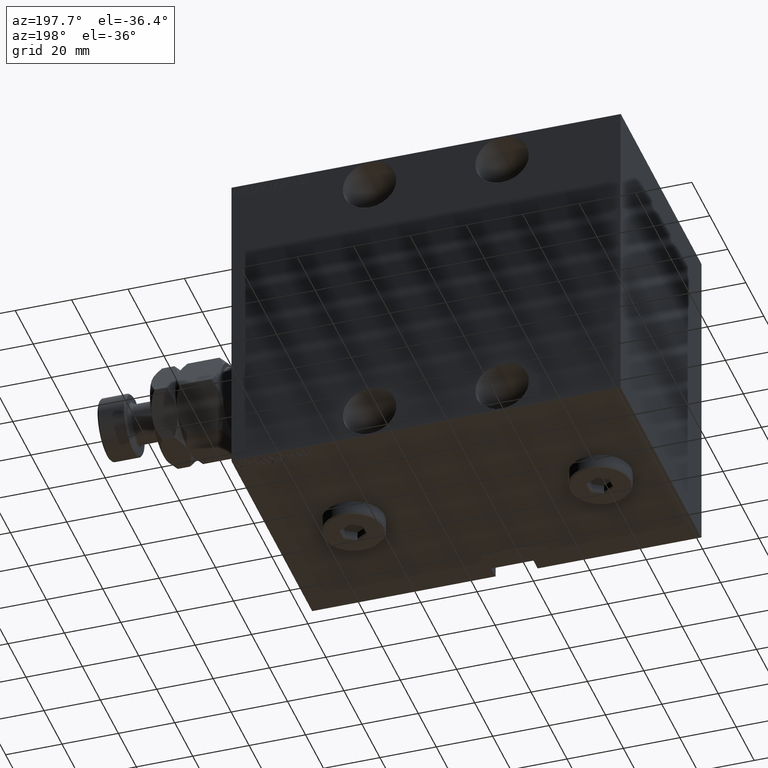
[diagram: clean part render]
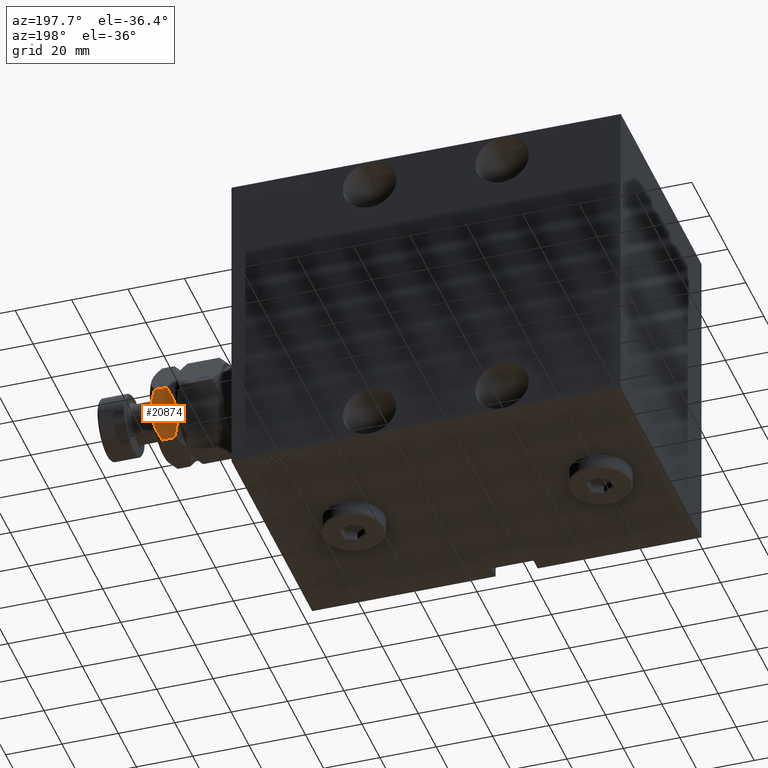
[diagram: same view with one face highlighted and labeled with its STEP entity id]
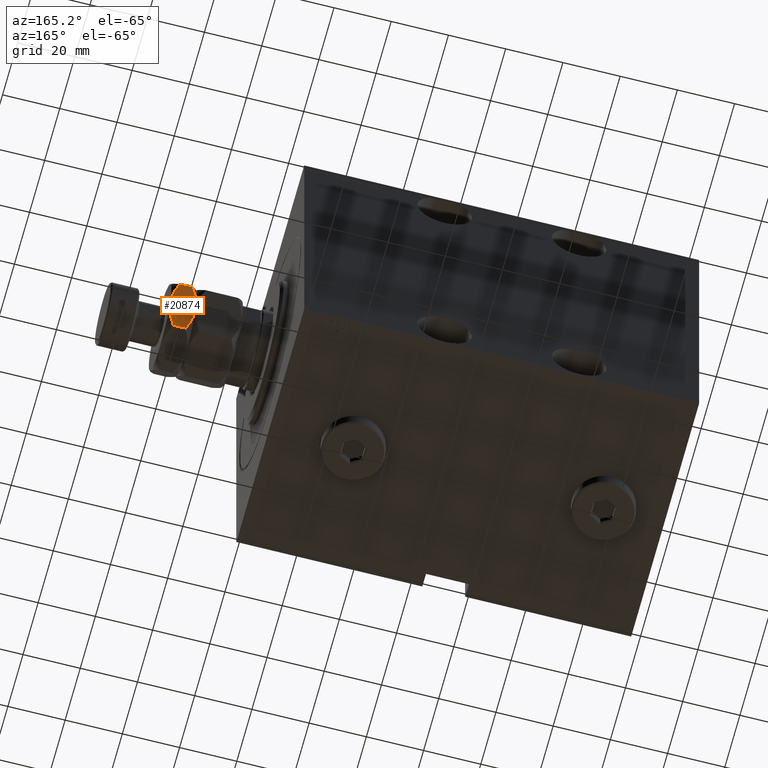
[diagram: same view with one face highlighted and labeled with its STEP entity id]
A machine part, auxiliary view. The second image highlights one B-rep face of the part: STEP entity #20874.
A second angle (auxiliary view) of the same face is appended — the face is thin or edge-on in the first view.
In plain terms, the highlighted planar face has unit normal (0, -0.866, 0.5).
Its self-contained STEP definition (entity closure, byte-faithful):
#244 = VERTEX_POINT ( 'NONE', #17517 ) ;
#792 = DIRECTION ( 'NONE',  ( -0.000000000000000000, -0.000000000000000000, -1.000000000000000000 ) ) ;
#1023 = CARTESIAN_POINT ( 'NONE',  ( 7.606663105073224303E-16, 17.32050807568877104, 22.67949192431123606 ) ) ;
#1620 = VECTOR ( 'NONE', #24114, 1000.000000000000000 ) ;
#3766 = CARTESIAN_POINT ( 'NONE',  ( 10.08691881950258917, 11.49682277995504798, 16.23032992193921586 ) ) ;
#4473 = B_SPLINE_CURVE_WITH_KNOTS ( 'NONE', 3,
 ( #20878, #27824, #14371, #7116, #42031, #24341, #10390, #38549 ),
 .UNSPECIFIED., .F., .F.,
 ( 4, 2, 2, 4 ),
 ( 2.544309033627217716E-07, 0.004488823491893905240, 0.006733108022389176252, 0.008977392552884448998 ),
 .UNSPECIFIED. ) ;
#6565 = AXIS2_PLACEMENT_3D ( 'NONE', #40763, #23073, #37279 ) ;
#6994 = CARTESIAN_POINT ( 'NONE',  ( 7.606663105073224303E-16, 17.32050807568877104, 22.67949192431123606 ) ) ;
#7116 = CARTESIAN_POINT ( 'NONE',  ( 10.75222765045651308, 11.11270654730956409, 24.55242859148698287 ) ) ;
#7188 = CARTESIAN_POINT ( 'NONE',  ( 1.176108425306642946, 16.64148155974180199, 17.64148155974179133 ) ) ;
#7242 = VERTEX_POINT ( 'NONE', #42506 ) ;
#7771 = LINE ( 'NONE', #36181, #45228 ) ;
#8392 = CARTESIAN_POINT ( 'NONE',  ( 7.500000000000000000, 12.99038105676657651, 16.00000000000000000 ) ) ;
#8673 = VERTEX_POINT ( 'NONE', #29340 ) ;
#8929 = EDGE_CURVE ( 'NONE', #7242, #244, #19702, .T. ) ;
#9822 = EDGE_CURVE ( 'NONE', #17726, #7242, #27377, .T. ) ;
#9897 = B_SPLINE_CURVE_WITH_KNOTS ( 'NONE', 3,
 ( #8392, #11437, #3766, #25611, #17992, #36351 ),
 .UNSPECIFIED., .F., .F.,
 ( 4, 2, 4 ),
 ( 0.008977392552884448998, 0.01343452311421656359, 0.01789165367554867991 ),
 .UNSPECIFIED. ) ;
#10216 = CARTESIAN_POINT ( 'NONE',  ( 4.247772349543485149, 14.86805556622358893, 16.44757140851302069 ) ) ;
#10390 = CARTESIAN_POINT ( 'NONE',  ( 8.156876182308248957, 12.61113341608665550, 25.00000000000000355 ) ) ;
#11196 = CARTESIAN_POINT ( 'NONE',  ( 2.383929548160351519, 15.94414570932928576, 23.93952096862912171 ) ) ;
#11437 = CARTESIAN_POINT ( 'NONE',  ( 8.804550678576910983, 12.23719837131868715, 16.00000000000000000 ) ) ;
#12235 = EDGE_CURVE ( 'NONE', #21063, #17726, #14451, .T. ) ;
#12848 = ORIENTED_EDGE ( 'NONE', *, *, #36152, .F. ) ;
#14356 = EDGE_LOOP ( 'NONE', ( #37216, #38800, #37653, #12848, #22078, #44271 ) ) ;
#14371 = CARTESIAN_POINT ( 'NONE',  ( 12.62116548881249223, 10.03367478323605866, 23.93551393225599000 ) ) ;
#14451 = B_SPLINE_CURVE_WITH_KNOTS ( 'NONE', 3,
 ( #35661, #32612, #39588, #11196, #25592, #6994 ),
 .UNSPECIFIED., .F., .F.,
 ( 4, 2, 4 ),
 ( 0.008977392552884448998, 0.01343452311421656532, 0.01789165367554867991 ),
 .UNSPECIFIED. ) ;
#17021 = EDGE_CURVE ( 'NONE', #8673, #44265, #7771, .T. ) ;
#17517 = CARTESIAN_POINT ( 'NONE',  ( 7.500000000000000000, 12.99038105676657651, 16.00000000000000000 ) ) ;
#17693 = CARTESIAN_POINT ( 'NONE',  ( 7.500000000000000000, 12.99038105676657651, 16.00000000000000000 ) ) ;
#17726 = VERTEX_POINT ( 'NONE', #1023 ) ;
#17992 = CARTESIAN_POINT ( 'NONE',  ( 13.82525345580783593, 9.338494271363314780, 17.64226784216978317 ) ) ;
#19702 = B_SPLINE_CURVE_WITH_KNOTS ( 'NONE', 3,
 ( #45839, #7188, #21403, #10216, #35623, #27669, #42584, #17693 ),
 .UNSPECIFIED., .F., .F.,
 ( 4, 2, 2, 4 ),
 ( 2.544309033643862443E-07, 0.004488823491893907842, 0.006733108022389177987, 0.008977392552884448998 ),
 .UNSPECIFIED. ) ;
#20874 = ADVANCED_FACE ( 'NONE', ( #26538 ), #22599, .F. ) ;
#20878 = CARTESIAN_POINT ( 'NONE',  ( 14.99999999999999822, 8.660254037844385522, 22.67949192431123961 ) ) ;
#21063 = VERTEX_POINT ( 'NONE', #31431 ) ;
#21403 = CARTESIAN_POINT ( 'NONE',  ( 2.378834511187505107, 15.94708733029709080, 17.06448606774400290 ) ) ;
#22078 = ORIENTED_EDGE ( 'NONE', *, *, #17021, .T. ) ;
#22599 = PLANE ( 'NONE',  #6565 ) ;
#23073 = DIRECTION ( 'NONE',  ( -0.5000000000000001110, -0.8660254037844387076, 0.000000000000000000 ) ) ;
#24114 = DIRECTION ( 'NONE',  ( -0.000000000000000000, -0.000000000000000000, -1.000000000000000000 ) ) ;
#24341 = CARTESIAN_POINT ( 'NONE',  ( 8.823580389329297446, 12.22621156269319798, 24.94046462602530667 ) ) ;
#25592 = CARTESIAN_POINT ( 'NONE',  ( 1.174746544192161180, 16.64226784216984711, 23.35773215783022039 ) ) ;
#25611 = CARTESIAN_POINT ( 'NONE',  ( 12.61607045183964360, 10.03661640420386369, 17.06047903137087829 ) ) ;
#26538 = FACE_OUTER_BOUND ( 'NONE', #14356, .T. ) ;
#27377 = LINE ( 'NONE', #41584, #1620 ) ;
#27669 = CARTESIAN_POINT ( 'NONE',  ( 6.176419610670696336, 13.75455055083995681, 16.05953537397469333 ) ) ;
#27824 = CARTESIAN_POINT ( 'NONE',  ( 13.82389157469335750, 9.339280553791359907, 23.35851844025819801 ) ) ;
#29340 = CARTESIAN_POINT ( 'NONE',  ( 14.99999999999999822, 8.660254037844385522, 22.67949192431123961 ) ) ;
#31431 = CARTESIAN_POINT ( 'NONE',  ( 7.499999999999998224, 12.99038105676657651, 25.00000000000000000 ) ) ;
#32612 = CARTESIAN_POINT ( 'NONE',  ( 6.195449321423086353, 13.74356374221446764, 25.00000000000000000 ) ) ;
#35623 = CARTESIAN_POINT ( 'NONE',  ( 4.881674457977375425, 14.50207201327940787, 16.28380266194628945 ) ) ;
#35661 = CARTESIAN_POINT ( 'NONE',  ( 7.499999999999998224, 12.99038105676657651, 25.00000000000000000 ) ) ;
#36028 = CARTESIAN_POINT ( 'NONE',  ( 14.99999999999999645, 8.660254037844387298, 18.32050807568876394 ) ) ;
#36152 = EDGE_CURVE ( 'NONE', #8673, #21063, #4473, .T. ) ;
#36181 = CARTESIAN_POINT ( 'NONE',  ( 14.99999999999999645, 8.660254037844385522, 25.00000000000000000 ) ) ;
#36351 = CARTESIAN_POINT ( 'NONE',  ( 14.99999999999999645, 8.660254037844387298, 18.32050807568876394 ) ) ;
#37216 = ORIENTED_EDGE ( 'NONE', *, *, #8929, .F. ) ;
#37279 = DIRECTION ( 'NONE',  ( 0.8660254037844385966, -0.5000000000000000000, 0.000000000000000000 ) ) ;
#37571 = EDGE_CURVE ( 'NONE', #244, #44265, #9897, .T. ) ;
#37653 = ORIENTED_EDGE ( 'NONE', *, *, #12235, .F. ) ;
#38549 = CARTESIAN_POINT ( 'NONE',  ( 7.499999999999998224, 12.99038105676657651, 25.00000000000000000 ) ) ;
#38800 = ORIENTED_EDGE ( 'NONE', *, *, #9822, .F. ) ;
#39588 = CARTESIAN_POINT ( 'NONE',  ( 4.913081180497410827, 14.48393933357810504, 24.76967007806078769 ) ) ;
#40763 = CARTESIAN_POINT ( 'NONE',  ( 14.99999999999999645, 8.660254037844385522, 25.00000000000000000 ) ) ;
#41584 = CARTESIAN_POINT ( 'NONE',  ( 3.803331551779305683E-16, 17.32050807568877104, 25.00000000000000000 ) ) ;
#42031 = CARTESIAN_POINT ( 'NONE',  ( 10.11832554202262102, 11.47869010025374514, 24.71619733805371055 ) ) ;
#42506 = CARTESIAN_POINT ( 'NONE',  ( 7.606663105073224303E-16, 17.32050807568877104, 18.32050807568876749 ) ) ;
#42584 = CARTESIAN_POINT ( 'NONE',  ( 6.843123817691748378, 13.36962869744649396, 16.00000000000000000 ) ) ;
#44265 = VERTEX_POINT ( 'NONE', #36028 ) ;
#44271 = ORIENTED_EDGE ( 'NONE', *, *, #37571, .F. ) ;
#45228 = VECTOR ( 'NONE', #792, 1000.000000000000000 ) ;
#45839 = CARTESIAN_POINT ( 'NONE',  ( 7.606663105073224303E-16, 17.32050807568877104, 18.32050807568876749 ) ) ;